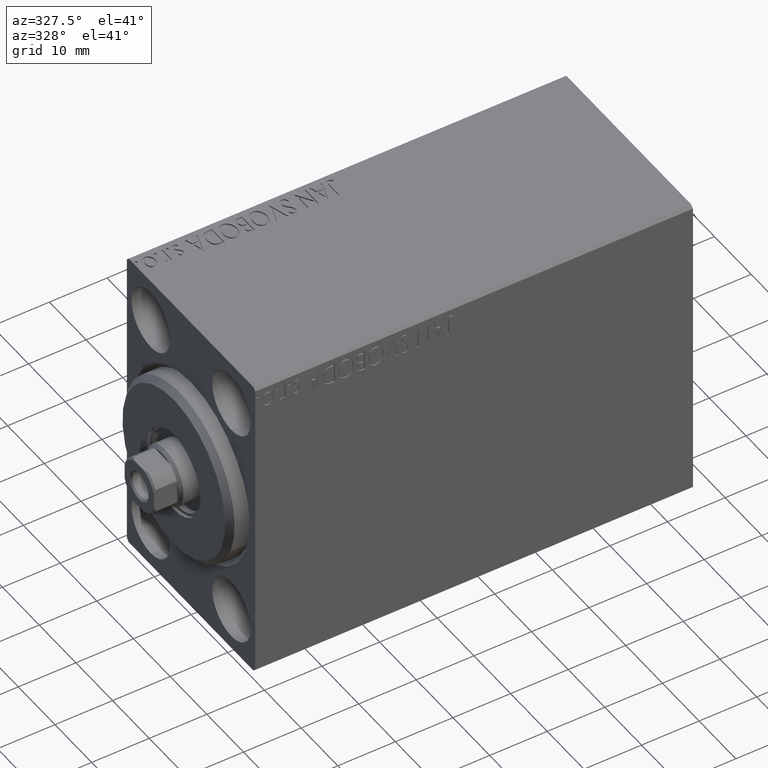
[diagram: clean part render]
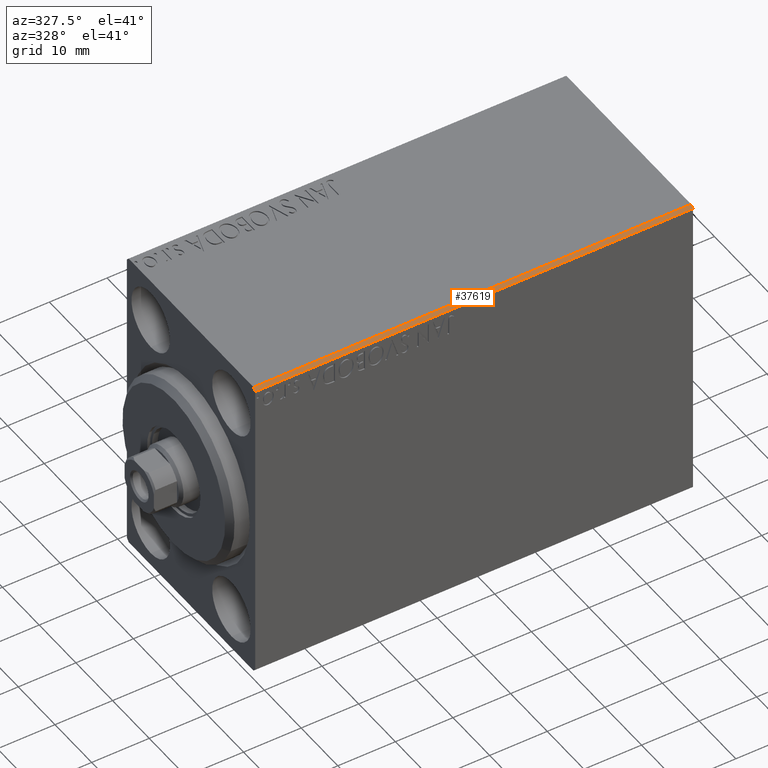
[diagram: same view with one face highlighted and labeled with its STEP entity id]
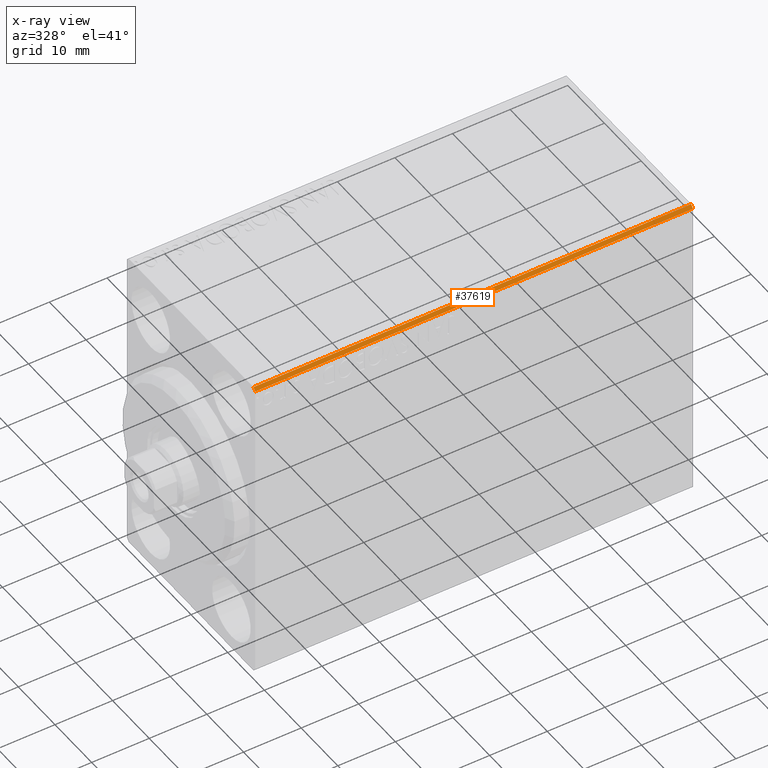
[diagram: x-ray of the same camera — body ghosted, the highlighted face saturated]
A machine part, auxiliary view. The second image highlights one B-rep face of the part: STEP entity #37619.
The next image is the same camera in x-ray: the body ghosted, the highlighted face saturated — about 0% of this face is hidden behind the body in this view.
In plain terms, the highlighted planar face has unit normal (0, 0.7071, -0.7071).
Its self-contained STEP definition (entity closure, byte-faithful):
#455 = CARTESIAN_POINT ( 'NONE',  ( 76.00000000000000000, -17.50000000000000000, 26.99999999999998224 ) ) ;
#816 = DIRECTION ( 'NONE',  ( -1.000000000000000000, 0.000000000000000000, 0.000000000000000000 ) ) ;
#5782 = EDGE_CURVE ( 'NONE', #32103, #14114, #21232, .T. ) ;
#5803 = DIRECTION ( 'NONE',  ( 1.000000000000000000, 0.000000000000000000, 0.000000000000000000 ) ) ;
#5998 = CARTESIAN_POINT ( 'NONE',  ( 0.000000000000000000, -16.99999999999998579, 27.49999999999999645 ) ) ;
#6439 = CARTESIAN_POINT ( 'NONE',  ( 76.00000000000000000, -17.50000000000000000, 26.99999999999998224 ) ) ;
#6798 = EDGE_CURVE ( 'NONE', #34677, #32103, #34077, .T. ) ;
#9137 = LINE ( 'NONE', #26015, #29974 ) ;
#10579 = VECTOR ( 'NONE', #816, 1000.000000000000000 ) ;
#13467 = DIRECTION ( 'NONE',  ( -0.000000000000000000, 0.7071067811865474617, 0.7071067811865474617 ) ) ;
#14100 = DIRECTION ( 'NONE',  ( 0.000000000000000000, -0.7071067811865474617, -0.7071067811865474617 ) ) ;
#14114 = VERTEX_POINT ( 'NONE', #43248 ) ;
#17212 = CARTESIAN_POINT ( 'NONE',  ( 76.00000000000000000, -22.24999999999998579, 22.24999999999998579 ) ) ;
#17904 = CARTESIAN_POINT ( 'NONE',  ( 76.00000000000000000, -17.50000000000000000, 26.99999999999998224 ) ) ;
#19831 = VECTOR ( 'NONE', #14100, 1000.000000000000114 ) ;
#19889 = EDGE_CURVE ( 'NONE', #24918, #34677, #9137, .T. ) ;
#21054 = ORIENTED_EDGE ( 'NONE', *, *, #6798, .F. ) ;
#21232 = LINE ( 'NONE', #17904, #10579 ) ;
#24918 = VERTEX_POINT ( 'NONE', #5998 ) ;
#26015 = CARTESIAN_POINT ( 'NONE',  ( 76.00000000000000000, -16.99999999999998579, 27.49999999999999645 ) ) ;
#26594 = EDGE_LOOP ( 'NONE', ( #21054, #37339, #36487, #31106 ) ) ;
#26872 = DIRECTION ( 'NONE',  ( 0.000000000000000000, 0.7071067811865475727, -0.7071067811865475727 ) ) ;
#27431 = AXIS2_PLACEMENT_3D ( 'NONE', #6439, #26872, #40393 ) ;
#29974 = VECTOR ( 'NONE', #5803, 1000.000000000000000 ) ;
#31106 = ORIENTED_EDGE ( 'NONE', *, *, #5782, .F. ) ;
#32103 = VERTEX_POINT ( 'NONE', #455 ) ;
#32688 = CARTESIAN_POINT ( 'NONE',  ( 76.00000000000000000, -16.99999999999998579, 27.49999999999999645 ) ) ;
#33080 = PLANE ( 'NONE',  #27431 ) ;
#34077 = LINE ( 'NONE', #17212, #19831 ) ;
#34677 = VERTEX_POINT ( 'NONE', #32688 ) ;
#36487 = ORIENTED_EDGE ( 'NONE', *, *, #42493, .F. ) ;
#36761 = LINE ( 'NONE', #43862, #42628 ) ;
#36834 = FACE_OUTER_BOUND ( 'NONE', #26594, .T. ) ;
#37339 = ORIENTED_EDGE ( 'NONE', *, *, #19889, .F. ) ;
#37619 = ADVANCED_FACE ( 'NONE', ( #36834 ), #33080, .F. ) ;
#40393 = DIRECTION ( 'NONE',  ( -1.000000000000000000, 0.000000000000000000, 0.000000000000000000 ) ) ;
#42493 = EDGE_CURVE ( 'NONE', #14114, #24918, #36761, .T. ) ;
#42628 = VECTOR ( 'NONE', #13467, 1000.000000000000114 ) ;
#43248 = CARTESIAN_POINT ( 'NONE',  ( 0.000000000000000000, -17.50000000000000000, 26.99999999999998224 ) ) ;
#43862 = CARTESIAN_POINT ( 'NONE',  ( 0.000000000000000000, -17.50000000000000000, 26.99999999999998224 ) ) ;